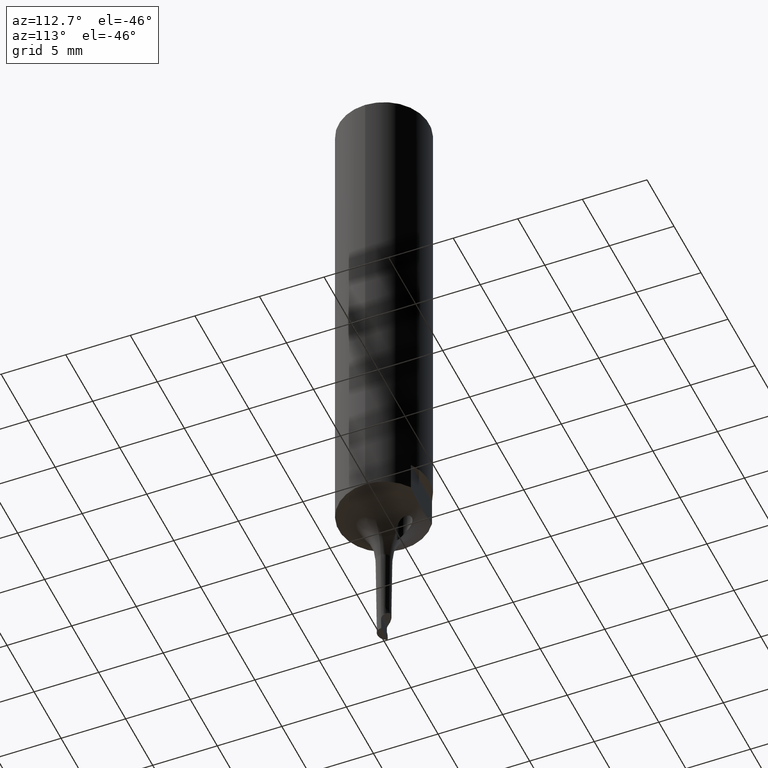
[diagram: clean part render]
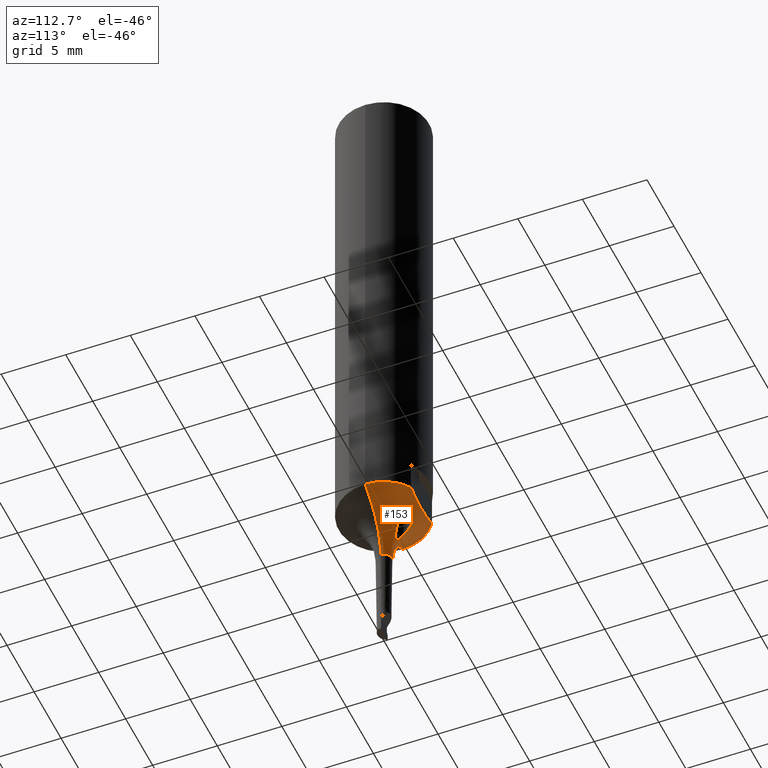
[diagram: same view with one face highlighted and labeled with its STEP entity id]
A machine part, auxiliary view. The second image highlights one B-rep face of the part: STEP entity #153.
In plain terms, the highlighted toroidal blend (fillet) surface has major radius 5.6059 mm and minor (blend) radius 5 mm.
Its self-contained STEP definition (entity closure, byte-faithful):
#153=ADVANCED_FACE('NONE',(#423,#424),#425,.F.);
#155=VERTEX_POINT('NONE',#427);
#163=EDGE_CURVE('NONE',#155,#177,#437,.T.);
#171=EDGE_CURVE('NONE',#249,#155,#445,.F.);
#177=VERTEX_POINT('NONE',#451);
#185=EDGE_CURVE('NONE',#371,#177,#459,.F.);
#215=EDGE_CURVE('NONE',#373,#257,#496,.T.);
#227=EDGE_CURVE('NONE',#257,#373,#509,.F.);
#249=VERTEX_POINT('NONE',#533);
#257=VERTEX_POINT('NONE',#543);
#263=EDGE_CURVE('NONE',#315,#371,#549,.T.);
#311=EDGE_CURVE('NONE',#389,#249,#601,.T.);
#313=EDGE_CURVE('NONE',#315,#389,#603,.F.);
#315=VERTEX_POINT('NONE',#605);
#371=VERTEX_POINT('NONE',#666);
#373=VERTEX_POINT('NONE',#668);
#389=VERTEX_POINT('NONE',#685);
#423=FACE_OUTER_BOUND('',#711,.T.);
#424=FACE_BOUND('',#712,.T.);
#425=TOROIDAL_SURFACE('',#713,5.60585171910735,5.0);
#427=CARTESIAN_POINT('',(-3.5,1.26488039877207E-014,-39.3));
#437=CIRCLE('',#728,5.0);
#445=CIRCLE('',#759,3.5);
#451=CARTESIAN_POINT('',(-0.606201534117828,2.19077839488913E-015,-43.7757636492398));
#459=CIRCLE('',#785,0.606201534117829);
#496=B_SPLINE_CURVE_WITH_KNOTS('',3,(#836,#837,#838,#839,#840,#841,#842,#843,#844,#845,#846,#847,#848,#849,#850,#851,#852,#853,#854,#855,#856,#857,#858),.UNSPECIFIED.,.F.,.F.,(4,2,2,2,2,3,2,2,2,2,4),(3.75249788683646,3.84908048832533,4.12943540475503,4.37349245046062,4.58966024996554,4.76238628842836,4.96257421183772,5.15936333724132,5.38423577827811,5.66693967326305,5.86539010056022),.UNSPECIFIED.);
#509=B_SPLINE_CURVE_WITH_KNOTS('',3,(#881,#882,#883,#884,#885,#886,#887,#888,#889,#890,#891,#892,#893,#894,#895,#896,#897,#898,#899,#900,#901,#902,#903,#904,#905,#906),.UNSPECIFIED.,.F.,.F.,(4,2,2,2,2,2,2,2,2,2,2,2,4),(-3.98843518155393,-3.97462653417573,-3.46910632186253,-2.92995844754295,-2.57430791076562,-2.43164631316982,-2.35168560358969,-2.28006002520868,-2.18247284596792,-2.01594208720385,-1.59200738286889,-1.17396727454399,-1.01248992104168),.UNSPECIFIED.);
#533=CARTESIAN_POINT('',(-1.95959179422653,2.90000000000001,-39.3));
#543=CARTESIAN_POINT('',(-0.599999999999995,1.55000000001265,-40.7613689241011));
#549=CIRCLE('',#1045,5.0);
#601=B_SPLINE_CURVE_WITH_KNOTS('',3,(#1136,#1137,#1138,#1139,#1140,#1141,#1142,#1143,#1144,#1145,#1146,#1147,#1148,#1149,#1150,#1151,#1152,#1153,#1154,#1155,#1156,#1157),.UNSPECIFIED.,.F.,.F.,(4,2,2,2,2,2,2,2,2,2,4),(21.0487613531403,21.8426586821244,22.5443452515733,23.2460318210222,23.947718390471,24.6494049599199,25.3510915293688,26.0527780988176,26.7544646682665,27.4561512377154,28.2500485666995),.UNSPECIFIED.);
#603=CIRCLE('',#1160,3.5);
#605=CARTESIAN_POINT('',(3.5,-1.22201917638828E-014,-39.3));
#666=CARTESIAN_POINT('',(0.606201534117828,-2.11654256985138E-015,-43.7757636492398));
#668=CARTESIAN_POINT('',(0.600000000000006,1.55000000001017,-40.7613689241041));
#685=CARTESIAN_POINT('',(1.95959179422655,2.89999999999999,-39.3));
#711=EDGE_LOOP('',(#1354,#1355,#1356,#1357,#1358,#1359));
#712=EDGE_LOOP('',(#1360,#1361));
#713=AXIS2_PLACEMENT_3D('',#1362,#1363,#1364);
#728=AXIS2_PLACEMENT_3D('',#1388,#1389,#1390);
#759=AXIS2_PLACEMENT_3D('',#1391,#1392,#1393);
#785=AXIS2_PLACEMENT_3D('',#1396,#1397,#1398);
#836=CARTESIAN_POINT('',(0.600000000000006,1.55000000001017,-40.7613689241041));
#837=CARTESIAN_POINT('',(0.599999999999508,1.57933484217281,-40.7262664521927));
#838=CARTESIAN_POINT('',(0.597848674798054,1.60871334778606,-40.6929454528533));
#839=CARTESIAN_POINT('',(0.58098233393132,1.72260528891495,-40.5695765794858));
#840=CARTESIAN_POINT('',(0.55036393233406,1.8037867104792,-40.4941041649922));
#841=CARTESIAN_POINT('',(0.463589545543302,1.93810179200691,-40.3786781039692));
#842=CARTESIAN_POINT('',(0.411885542551038,1.99260441414119,-40.3361408755363));
#843=CARTESIAN_POINT('',(0.298053520569459,2.07489699650711,-40.2742740508285));
#844=CARTESIAN_POINT('',(0.236524316494623,2.10593043456628,-40.2522310593737));
#845=CARTESIAN_POINT('',(0.114412506168791,2.14169553863704,-40.2271261683932));
#846=CARTESIAN_POINT('',(0.0575753461542807,2.15,-40.2214483677185));
#847=CARTESIAN_POINT('',(4.77395900588818E-015,2.15,-40.2214483677185));
#848=CARTESIAN_POINT('',(-0.066729307803113,2.15,-40.2214483677185));
#849=CARTESIAN_POINT('',(-0.13239223339327,2.13883945674321,-40.2290582803004));
#850=CARTESIAN_POINT('',(-0.254852742051013,2.09696094685846,-40.2586325998556));
#851=CARTESIAN_POINT('',(-0.309992462851392,2.06723858487403,-40.2799321847085));
#852=CARTESIAN_POINT('',(-0.413554822815811,1.99012930370987,-40.3381310693564));
#853=CARTESIAN_POINT('',(-0.458567189292443,1.94191089426456,-40.3760672134029));
#854=CARTESIAN_POINT('',(-0.5383709034796,1.82619907137335,-40.4742029327473));
#855=CARTESIAN_POINT('',(-0.566815455984424,1.75826081013338,-40.5365879578607));
#856=CARTESIAN_POINT('',(-0.594287762302038,1.64547021767441,-40.6519900518626));
#857=CARTESIAN_POINT('',(-0.599999999998986,1.59781247981627,-40.7041558591727));
#858=CARTESIAN_POINT('',(-0.599999999999995,1.55000000001265,-40.7613689241011));
#881=CARTESIAN_POINT('',(0.600000000000006,1.55000000001017,-40.7613689241041));
#882=CARTESIAN_POINT('',(0.600000000000058,1.54690523424467,-40.765072162995));
#883=CARTESIAN_POINT('',(0.599976055954325,1.54381071045727,-40.7687955161208));
#884=CARTESIAN_POINT('',(0.598175481441621,1.42744922548703,-40.9095859690105));
#885=CARTESIAN_POINT('',(0.564875541059498,1.32085575705587,-41.0675977915616));
#886=CARTESIAN_POINT('',(0.446142201198237,1.13269670647145,-41.4291523630542));
#887=CARTESIAN_POINT('',(0.367348622078673,1.06830541161071,-41.6054547532226));
#888=CARTESIAN_POINT('',(0.24660050318773,1.00025171952361,-41.8186005398693));
#889=CARTESIAN_POINT('',(0.193132114036546,0.979041588681542,-41.8966848125217));
#890=CARTESIAN_POINT('',(0.114854972636632,0.960645881980728,-41.968396576235));
#891=CARTESIAN_POINT('',(0.0893557804552096,0.956045061269889,-41.9870494047685));
#892=CARTESIAN_POINT('',(0.046370356298672,0.951593181354487,-42.0053469895374));
#893=CARTESIAN_POINT('',(0.0304656111655442,0.950551961807033,-42.0096870455089));
#894=CARTESIAN_POINT('',(-0.000450724396657083,0.949822264015657,-42.0127255958024));
#895=CARTESIAN_POINT('',(-0.0147186258106961,0.950017219470206,-42.0119099303622));
#896=CARTESIAN_POINT('',(-0.0477531225744686,0.951599274435493,-42.0053369231236));
#897=CARTESIAN_POINT('',(-0.0654615719690373,0.953352956320437,-41.9980703614107));
#898=CARTESIAN_POINT('',(-0.109755049730371,0.959450619143028,-41.9732649306013));
#899=CARTESIAN_POINT('',(-0.140995938365742,0.96563018841791,-41.9480898008752));
#900=CARTESIAN_POINT('',(-0.26634289812408,1.00417369992119,-41.8039806545074));
#901=CARTESIAN_POINT('',(-0.355347296221169,1.0551237200579,-41.6322579355831));
#902=CARTESIAN_POINT('',(-0.502050154937014,1.20530986141633,-41.2769494710142));
#903=CARTESIAN_POINT('',(-0.559092622413873,1.3026765454854,-41.096838632993));
#904=CARTESIAN_POINT('',(-0.595120453938682,1.46120952873501,-40.8717685052321));
#905=CARTESIAN_POINT('',(-0.600000000000927,1.50579975858526,-40.8142595353605));
#906=CARTESIAN_POINT('',(-0.599999999999995,1.55000000001265,-40.7613689241011));
#1045=AXIS2_PLACEMENT_3D('',#1508,#1509,#1510);
#1136=CARTESIAN_POINT('',(3.74300336192893,2.89999999999999,-38.9113329017987));
#1137=CARTESIAN_POINT('',(3.45531455891756,2.89999999999999,-38.951557921326));
#1138=CARTESIAN_POINT('',(3.16954039729511,2.89999999999999,-39.006756963114));
#1139=CARTESIAN_POINT('',(2.68288819611407,2.89999999999999,-39.1149224294776));
#1140=CARTESIAN_POINT('',(2.44489540506429,2.89999999999999,-39.1742781605165));
#1141=CARTESIAN_POINT('',(1.95965627576482,2.89999999999999,-39.299657709969));
#1142=CARTESIAN_POINT('',(1.71238985726867,2.89999999999999,-39.3656038017315));
#1143=CARTESIAN_POINT('',(1.21648484202367,2.9,-39.485092354578));
#1144=CARTESIAN_POINT('',(0.967602002438161,2.9,-39.5382204715876));
#1145=CARTESIAN_POINT('',(0.476349763458122,2.9,-39.6111320925695));
#1146=CARTESIAN_POINT('',(0.233895523149635,2.9,-39.6303428194416));
#1147=CARTESIAN_POINT('',(-0.233895523149614,2.9,-39.6303428194416));
#1148=CARTESIAN_POINT('',(-0.476349763458102,2.9,-39.6111320925695));
#1149=CARTESIAN_POINT('',(-0.967602002438141,2.9,-39.5382204715876));
#1150=CARTESIAN_POINT('',(-1.21648484202365,2.9,-39.485092354578));
#1151=CARTESIAN_POINT('',(-1.71238985726865,2.90000000000001,-39.3656038017315));
#1152=CARTESIAN_POINT('',(-1.9596562757648,2.90000000000001,-39.299657709969));
#1153=CARTESIAN_POINT('',(-2.44489540506426,2.90000000000001,-39.1742781605165));
#1154=CARTESIAN_POINT('',(-2.68288819611405,2.90000000000001,-39.1149224294776));
#1155=CARTESIAN_POINT('',(-3.16954039729509,2.90000000000001,-39.006756963114));
#1156=CARTESIAN_POINT('',(-3.45531455891754,2.90000000000001,-38.951557921326));
#1157=CARTESIAN_POINT('',(-3.74300336192891,2.90000000000001,-38.9113329017987));
#1160=AXIS2_PLACEMENT_3D('',#1570,#1571,#1572);
#1354=ORIENTED_EDGE('',*,*,#163,.F.);
#1355=ORIENTED_EDGE('',*,*,#171,.F.);
#1356=ORIENTED_EDGE('',*,*,#311,.F.);
#1357=ORIENTED_EDGE('',*,*,#313,.F.);
#1358=ORIENTED_EDGE('',*,*,#263,.T.);
#1359=ORIENTED_EDGE('',*,*,#185,.T.);
#1360=ORIENTED_EDGE('',*,*,#215,.T.);
#1361=ORIENTED_EDGE('',*,*,#227,.T.);
#1362=CARTESIAN_POINT('',(0.0,0.0,-43.8349077760339));
#1363=DIRECTION('',(0.0,0.0,1.0));
#1364=DIRECTION('',(1.0,-3.49148336110938E-015,-0.0));
#1388=CARTESIAN_POINT('',(-5.60585171910735,2.02592341654902E-014,-43.8349077760339));
#1389=DIRECTION('',(3.61394399649162E-015,1.0,0.0));
#1390=DIRECTION('',(1.0,-3.61394399649162E-015,-0.0));
#1391=CARTESIAN_POINT('',(0.0,0.0,-39.3));
#1392=DIRECTION('',(0.0,0.0,-1.0));
#1393=DIRECTION('',(1.0,-3.49148336110938E-015,0.0));
#1396=CARTESIAN_POINT('',(0.0,0.0,-43.7757636492398));
#1397=DIRECTION('',(0.0,0.0,-1.0));
#1398=DIRECTION('',(1.0,-3.49148336110938E-015,0.0));
#1508=CARTESIAN_POINT('',(5.60585171910735,-1.95727380021097E-014,-43.8349077760339));
#1509=DIRECTION('',(-3.49148336110938E-015,-1.0,0.0));
#1510=DIRECTION('',(-1.0,3.49148336110938E-015,0.0));
#1570=CARTESIAN_POINT('',(0.0,0.0,-39.3));
#1571=DIRECTION('',(0.0,0.0,-1.0));
#1572=DIRECTION('',(1.0,-3.49148336110938E-015,0.0));